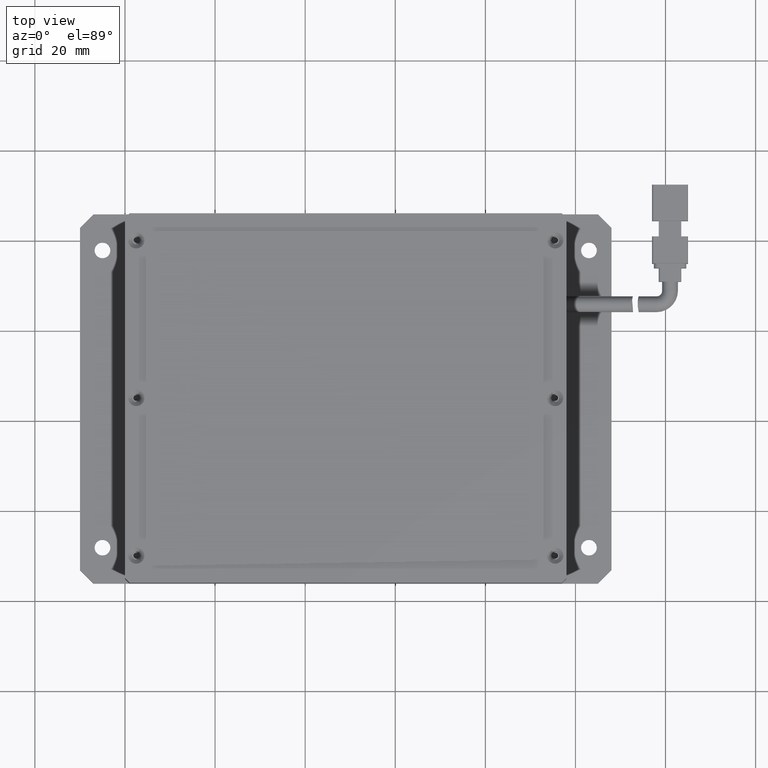
[diagram: clean part render]
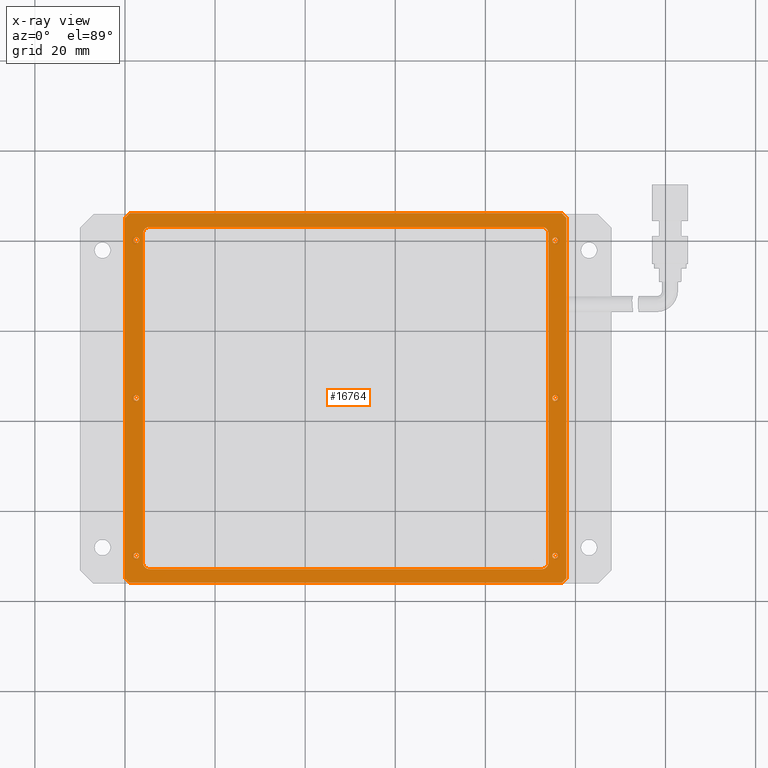
[diagram: x-ray — body ghosted, one internal face saturated and labeled with its STEP entity id]
A machine part, top view, then the same camera in x-ray: the body is ghosted and one INTERNAL B-rep face — a face not visible from any outside direction — is saturated and labeled: STEP entity #16764.
In plain terms, the highlighted planar face has unit normal (0, 0, -1).
Its self-contained STEP definition (entity closure, byte-faithful):
#27 = VECTOR ( 'NONE', #4914, 1000.000000000000000 ) ;
#37 = CARTESIAN_POINT ( 'NONE',  ( -39.99847269950363700, 42.85299732722415900, 10.99999999999551300 ) ) ;
#83 = CARTESIAN_POINT ( 'NONE',  ( 54.00152730049637700, -31.64700267277583400, 10.99999999999551300 ) ) ;
#187 = CARTESIAN_POINT ( 'NONE',  ( -39.99847269950363700, 45.85299732722416600, 10.99999999999551300 ) ) ;
#188 = CARTESIAN_POINT ( 'NONE',  ( 56.12652730049636300, 4.852997327224162700, 10.99999999999551300 ) ) ;
#214 = DIRECTION ( 'NONE',  ( -1.000000000000000000, 0.0000000000000000000, -0.0000000000000000000 ) ) ;
#395 = ORIENTED_EDGE ( 'NONE', *, *, #9872, .F. ) ;
#426 = EDGE_CURVE ( 'NONE', #3353, #3067, #11346, .T. ) ;
#461 = EDGE_CURVE ( 'NONE', #14214, #14255, #10644, .T. ) ;
#484 = FACE_OUTER_BOUND ( 'NONE', #14587, .T. ) ;
#625 = ORIENTED_EDGE ( 'NONE', *, *, #15202, .F. ) ;
#791 = CARTESIAN_POINT ( 'NONE',  ( -39.99847269950363700, 44.85299732722413800, 10.99999999999551300 ) ) ;
#1008 = VECTOR ( 'NONE', #3658, 1000.000000000000000 ) ;
#1085 = CARTESIAN_POINT ( 'NONE',  ( 54.87652730049636300, -30.14700267277584100, 10.99999999999551300 ) ) ;
#1119 = EDGE_CURVE ( 'NONE', #8654, #8422, #14014, .T. ) ;
#1139 = ORIENTED_EDGE ( 'NONE', *, *, #12066, .T. ) ;
#1216 = DIRECTION ( 'NONE',  ( 1.000000000000000000, 0.0000000000000000000, 0.0000000000000000000 ) ) ;
#1220 = CIRCLE ( 'NONE', #8804, 0.6250000000000005600 ) ;
#1291 = DIRECTION ( 'NONE',  ( 1.000000000000000000, 0.0000000000000000000, 0.0000000000000000000 ) ) ;
#1309 = CARTESIAN_POINT ( 'NONE',  ( 58.00152730049637000, -35.14700267277585500, 10.99999999999551300 ) ) ;
#1370 = AXIS2_PLACEMENT_3D ( 'NONE', #5085, #13944, #6326 ) ;
#1377 = CARTESIAN_POINT ( 'NONE',  ( 55.50152730049636300, 4.852997327224162700, 10.99999999999551300 ) ) ;
#1415 = CARTESIAN_POINT ( 'NONE',  ( 56.12652730049636300, -30.14700267277584100, 10.99999999999551300 ) ) ;
#1430 = DIRECTION ( 'NONE',  ( -0.0000000000000000000, -0.0000000000000000000, 1.000000000000000000 ) ) ;
#1436 = ORIENTED_EDGE ( 'NONE', *, *, #14103, .F. ) ;
#1450 = ORIENTED_EDGE ( 'NONE', *, *, #15275, .F. ) ;
#1540 = CARTESIAN_POINT ( 'NONE',  ( -38.99847269950364400, -36.14700267277584100, 10.99999999999551300 ) ) ;
#1561 = CARTESIAN_POINT ( 'NONE',  ( 55.50152730049636300, -30.14700267277584100, 10.99999999999551300 ) ) ;
#1659 = CIRCLE ( 'NONE', #3608, 1.500000000000001300 ) ;
#1758 = LINE ( 'NONE', #37, #4889 ) ;
#1893 = CARTESIAN_POINT ( 'NONE',  ( -39.99847269950363700, 45.85299732722416600, 10.99999999999551300 ) ) ;
#1915 = ORIENTED_EDGE ( 'NONE', *, *, #3147, .F. ) ;
#2191 = EDGE_LOOP ( 'NONE', ( #14137, #2971 ) ) ;
#2342 = ORIENTED_EDGE ( 'NONE', *, *, #1119, .F. ) ;
#2402 = CARTESIAN_POINT ( 'NONE',  ( -39.99847269950363700, 45.85299732722416600, 10.99999999999551300 ) ) ;
#2675 = CARTESIAN_POINT ( 'NONE',  ( -38.07905127682133200, 39.91058370809953000, 10.99999999999551300 ) ) ;
#2693 = AXIS2_PLACEMENT_3D ( 'NONE', #1377, #1430, #5235 ) ;
#2837 = DIRECTION ( 'NONE',  ( 0.0000000000000000000, 0.0000000000000000000, 1.000000000000000000 ) ) ;
#2920 = DIRECTION ( 'NONE',  ( 1.000000000000000000, 0.0000000000000000000, 0.0000000000000000000 ) ) ;
#2971 = ORIENTED_EDGE ( 'NONE', *, *, #461, .F. ) ;
#3067 = VERTEX_POINT ( 'NONE', #10291 ) ;
#3103 = CARTESIAN_POINT ( 'NONE',  ( 52.50152730049636300, 42.85299732722415900, 10.99999999999551300 ) ) ;
#3147 = EDGE_CURVE ( 'NONE', #15125, #15163, #16134, .T. ) ;
#3170 = CARTESIAN_POINT ( 'NONE',  ( 56.12652730049636300, 39.85299732722415900, 10.99999999999551300 ) ) ;
#3263 = DIRECTION ( 'NONE',  ( -1.000000000000000000, 0.0000000000000000000, -0.0000000000000000000 ) ) ;
#3280 = VERTEX_POINT ( 'NONE', #5790 ) ;
#3353 = VERTEX_POINT ( 'NONE', #5344 ) ;
#3361 = DIRECTION ( 'NONE',  ( -0.0000000000000000000, -0.0000000000000000000, 1.000000000000000000 ) ) ;
#3382 = AXIS2_PLACEMENT_3D ( 'NONE', #4067, #12962, #5357 ) ;
#3422 = ORIENTED_EDGE ( 'NONE', *, *, #11112, .T. ) ;
#3450 = ORIENTED_EDGE ( 'NONE', *, *, #8393, .F. ) ;
#3504 = AXIS2_PLACEMENT_3D ( 'NONE', #16662, #8971, #1216 ) ;
#3552 = CARTESIAN_POINT ( 'NONE',  ( -38.12347269950363700, -30.14700267277584100, 10.99999999999551300 ) ) ;
#3600 = VERTEX_POINT ( 'NONE', #83 ) ;
#3608 = AXIS2_PLACEMENT_3D ( 'NONE', #12992, #5385, #14270 ) ;
#3609 = ORIENTED_EDGE ( 'NONE', *, *, #9233, .F. ) ;
#3658 = DIRECTION ( 'NONE',  ( -0.0000000000000000000, -1.000000000000000000, -0.0000000000000000000 ) ) ;
#3684 = CARTESIAN_POINT ( 'NONE',  ( 58.00152730049637000, 45.85299732722416600, 10.99999999999551300 ) ) ;
#3770 = DIRECTION ( 'NONE',  ( 0.0000000000000000000, 1.000000000000000000, 0.0000000000000000000 ) ) ;
#4034 = ORIENTED_EDGE ( 'NONE', *, *, #16206, .T. ) ;
#4057 = FACE_BOUND ( 'NONE', #2191, .T. ) ;
#4067 = CARTESIAN_POINT ( 'NONE',  ( 55.50152730049636300, 4.852997327224162700, 10.99999999999551300 ) ) ;
#4117 = ORIENTED_EDGE ( 'NONE', *, *, #4491, .F. ) ;
#4122 = CIRCLE ( 'NONE', #7654, 1.500000000000001300 ) ;
#4243 = CIRCLE ( 'NONE', #11741, 0.6250000000000005600 ) ;
#4255 = CARTESIAN_POINT ( 'NONE',  ( -35.99847269950362300, 41.35299732722417300, 10.99999999999551300 ) ) ;
#4491 = EDGE_CURVE ( 'NONE', #5124, #3280, #1758, .T. ) ;
#4603 = VERTEX_POINT ( 'NONE', #13151 ) ;
#4702 = LINE ( 'NONE', #3684, #11441 ) ;
#4805 = CARTESIAN_POINT ( 'NONE',  ( -39.99847269950363700, -33.14700267277584800, 10.99999999999551300 ) ) ;
#4823 = CIRCLE ( 'NONE', #15064, 0.6250000000000005600 ) ;
#4889 = VECTOR ( 'NONE', #214, 1000.000000000000000 ) ;
#4914 = DIRECTION ( 'NONE',  ( 1.000000000000000000, -0.0000000000000000000, 0.0000000000000000000 ) ) ;
#4950 = VERTEX_POINT ( 'NONE', #7805 ) ;
#5085 = CARTESIAN_POINT ( 'NONE',  ( -37.49847269950363700, 4.852997327224162700, 10.99999999999551300 ) ) ;
#5122 = LINE ( 'NONE', #5813, #8076 ) ;
#5124 = VERTEX_POINT ( 'NONE', #3103 ) ;
#5177 = CARTESIAN_POINT ( 'NONE',  ( 58.00152730049638400, 44.85299732722409500, 10.99999999999551600 ) ) ;
#5235 = DIRECTION ( 'NONE',  ( 1.000000000000000000, 0.0000000000000000000, 0.0000000000000000000 ) ) ;
#5344 = CARTESIAN_POINT ( 'NONE',  ( -34.49847269950362300, -33.14700267277584800, 10.99999999999551300 ) ) ;
#5349 = CARTESIAN_POINT ( 'NONE',  ( -39.99847269950363700, -36.14700267277585500, 10.99999999999551300 ) ) ;
#5357 = DIRECTION ( 'NONE',  ( 1.000000000000000000, 0.0000000000000000000, 0.0000000000000000000 ) ) ;
#5385 = DIRECTION ( 'NONE',  ( 0.0000000000000000000, 0.0000000000000000000, 1.000000000000000000 ) ) ;
#5466 = CARTESIAN_POINT ( 'NONE',  ( -34.49847269950362300, -31.64700267277584800, 10.99999999999551300 ) ) ;
#5540 = DIRECTION ( 'NONE',  ( 0.0000000000000000000, 0.0000000000000000000, 1.000000000000000000 ) ) ;
#5543 = CARTESIAN_POINT ( 'NONE',  ( 57.00152730049632800, 45.85299732722416600, 10.99999999999551300 ) ) ;
#5575 = PLANE ( 'NONE',  #16573 ) ;
#5584 = VERTEX_POINT ( 'NONE', #4255 ) ;
#5790 = CARTESIAN_POINT ( 'NONE',  ( -34.49847269950362300, 42.85299732722417300, 10.99999999999551300 ) ) ;
#5813 = CARTESIAN_POINT ( 'NONE',  ( -38.99847269950365100, -36.14700267277584100, 10.99999999999551300 ) ) ;
#6003 = CARTESIAN_POINT ( 'NONE',  ( 57.00152730049635600, -36.14700267277584800, 10.99999999999551300 ) ) ;
#6182 = ORIENTED_EDGE ( 'NONE', *, *, #6705, .F. ) ;
#6194 = EDGE_CURVE ( 'NONE', #3280, #5584, #1659, .T. ) ;
#6211 = CARTESIAN_POINT ( 'NONE',  ( -36.87347269950363000, -30.14700267277584100, 10.99999999999551300 ) ) ;
#6313 = DIRECTION ( 'NONE',  ( -1.000000000000000000, 0.0000000000000000000, -0.0000000000000000000 ) ) ;
#6326 = DIRECTION ( 'NONE',  ( 1.000000000000000000, 0.0000000000000000000, 0.0000000000000000000 ) ) ;
#6340 = ORIENTED_EDGE ( 'NONE', *, *, #11872, .F. ) ;
#6349 = ORIENTED_EDGE ( 'NONE', *, *, #9693, .F. ) ;
#6444 = CIRCLE ( 'NONE', #8533, 0.6250000000000005600 ) ;
#6473 = CARTESIAN_POINT ( 'NONE',  ( -38.99847269950362300, 45.85299732722416600, 10.99999999999551300 ) ) ;
#6598 = DIRECTION ( 'NONE',  ( -0.0000000000000000000, -0.0000000000000000000, 1.000000000000000000 ) ) ;
#6620 = CARTESIAN_POINT ( 'NONE',  ( 54.87652730049636300, 39.85299732722415900, 10.99999999999551300 ) ) ;
#6705 = EDGE_CURVE ( 'NONE', #8258, #10075, #11762, .T. ) ;
#6745 = DIRECTION ( 'NONE',  ( 1.000000000000000000, 0.0000000000000000000, 0.0000000000000000000 ) ) ;
#6805 = VERTEX_POINT ( 'NONE', #13296 ) ;
#7051 = FACE_BOUND ( 'NONE', #13227, .T. ) ;
#7058 = VECTOR ( 'NONE', #10312, 1000.000000000000000 ) ;
#7197 = DIRECTION ( 'NONE',  ( -0.0000000000000000000, -0.0000000000000000000, 1.000000000000000000 ) ) ;
#7201 = ORIENTED_EDGE ( 'NONE', *, *, #7372, .F. ) ;
#7299 = ORIENTED_EDGE ( 'NONE', *, *, #14614, .F. ) ;
#7372 = EDGE_CURVE ( 'NONE', #15163, #15125, #4823, .T. ) ;
#7434 = FACE_BOUND ( 'NONE', #13299, .T. ) ;
#7488 = CIRCLE ( 'NONE', #8509, 1.500000000000001300 ) ;
#7574 = CARTESIAN_POINT ( 'NONE',  ( -37.49847269950363700, 4.852997327224162700, 10.99999999999551300 ) ) ;
#7603 = DIRECTION ( 'NONE',  ( -0.0000000000000000000, -0.0000000000000000000, 1.000000000000000000 ) ) ;
#7654 = AXIS2_PLACEMENT_3D ( 'NONE', #5466, #14367, #6745 ) ;
#7696 = VECTOR ( 'NONE', #3770, 1000.000000000000000 ) ;
#7769 = AXIS2_PLACEMENT_3D ( 'NONE', #15243, #7603, #16559 ) ;
#7805 = CARTESIAN_POINT ( 'NONE',  ( -35.99847269950362300, -31.64700267277584800, 10.99999999999551300 ) ) ;
#7919 = LINE ( 'NONE', #11272, #1008 ) ;
#7920 = CARTESIAN_POINT ( 'NONE',  ( -36.82905127682133200, 39.91058370809953000, 10.99999999999551300 ) ) ;
#7945 = ORIENTED_EDGE ( 'NONE', *, *, #13237, .F. ) ;
#7997 = AXIS2_PLACEMENT_3D ( 'NONE', #13137, #5540, #14449 ) ;
#8013 = CIRCLE ( 'NONE', #7997, 1.500000000000001300 ) ;
#8029 = DIRECTION ( 'NONE',  ( 1.000000000000000000, -0.0000000000000000000, 0.0000000000000000000 ) ) ;
#8076 = VECTOR ( 'NONE', #13425, 1000.000000000000000 ) ;
#8095 = LINE ( 'NONE', #10516, #11089 ) ;
#8258 = VERTEX_POINT ( 'NONE', #6473 ) ;
#8350 = EDGE_CURVE ( 'NONE', #14255, #14214, #9468, .T. ) ;
#8375 = EDGE_CURVE ( 'NONE', #3067, #3600, #7488, .T. ) ;
#8393 = EDGE_CURVE ( 'NONE', #4950, #3353, #4122, .T. ) ;
#8422 = VERTEX_POINT ( 'NONE', #1540 ) ;
#8496 = DIRECTION ( 'NONE',  ( 1.000000000000000000, 0.0000000000000000000, 0.0000000000000000000 ) ) ;
#8509 = AXIS2_PLACEMENT_3D ( 'NONE', #10484, #2837, #11791 ) ;
#8533 = AXIS2_PLACEMENT_3D ( 'NONE', #14842, #7197, #16138 ) ;
#8542 = VECTOR ( 'NONE', #11132, 1000.000000000000000 ) ;
#8550 = DIRECTION ( 'NONE',  ( -0.0000000000000000000, -0.0000000000000000000, 1.000000000000000000 ) ) ;
#8566 = CARTESIAN_POINT ( 'NONE',  ( -37.49847269950363700, -30.14700267277584100, 10.99999999999551300 ) ) ;
#8654 = VERTEX_POINT ( 'NONE', #6003 ) ;
#8688 = VERTEX_POINT ( 'NONE', #11404 ) ;
#8804 = AXIS2_PLACEMENT_3D ( 'NONE', #11000, #3361, #12288 ) ;
#8837 = DIRECTION ( 'NONE',  ( 1.000000000000000000, 0.0000000000000000000, 0.0000000000000000000 ) ) ;
#8863 = CIRCLE ( 'NONE', #15863, 0.6250000000000005600 ) ;
#8971 = DIRECTION ( 'NONE',  ( -0.0000000000000000000, -0.0000000000000000000, 1.000000000000000000 ) ) ;
#9039 = DIRECTION ( 'NONE',  ( -0.0000000000000000000, -0.0000000000000000000, 1.000000000000000000 ) ) ;
#9233 = EDGE_CURVE ( 'NONE', #14652, #14799, #10590, .T. ) ;
#9296 = VERTEX_POINT ( 'NONE', #5177 ) ;
#9376 = ORIENTED_EDGE ( 'NONE', *, *, #8375, .F. ) ;
#9468 = CIRCLE ( 'NONE', #3382, 0.6250000000000005600 ) ;
#9538 = VERTEX_POINT ( 'NONE', #10738 ) ;
#9693 = EDGE_CURVE ( 'NONE', #4603, #5124, #8013, .T. ) ;
#9872 = EDGE_CURVE ( 'NONE', #13809, #13722, #6444, .T. ) ;
#10002 = DIRECTION ( 'NONE',  ( -0.0000000000000000000, -1.000000000000000000, -0.0000000000000000000 ) ) ;
#10012 = EDGE_CURVE ( 'NONE', #15662, #15589, #13598, .T. ) ;
#10075 = VERTEX_POINT ( 'NONE', #14025 ) ;
#10095 = ORIENTED_EDGE ( 'NONE', *, *, #10012, .F. ) ;
#10291 = CARTESIAN_POINT ( 'NONE',  ( 52.50152730049636300, -33.14700267277584100, 10.99999999999551300 ) ) ;
#10312 = DIRECTION ( 'NONE',  ( 0.7071067811865524600, 0.7071067811865426900, -0.0000000000000000000 ) ) ;
#10397 = FACE_BOUND ( 'NONE', #13439, .T. ) ;
#10484 = CARTESIAN_POINT ( 'NONE',  ( 52.50152730049637700, -31.64700267277583400, 10.99999999999551300 ) ) ;
#10516 = CARTESIAN_POINT ( 'NONE',  ( 54.00152730049637700, 45.85299732722416600, 10.99999999999551300 ) ) ;
#10563 = DIRECTION ( 'NONE',  ( -0.0000000000000000000, -0.0000000000000000000, 1.000000000000000000 ) ) ;
#10589 = ORIENTED_EDGE ( 'NONE', *, *, #13624, .F. ) ;
#10590 = CIRCLE ( 'NONE', #7769, 0.6250000000000005600 ) ;
#10644 = CIRCLE ( 'NONE', #2693, 0.6250000000000005600 ) ;
#10738 = CARTESIAN_POINT ( 'NONE',  ( 58.00152730049637000, -35.14700267277585500, 10.99999999999551300 ) ) ;
#10807 = FACE_BOUND ( 'NONE', #14126, .T. ) ;
#10897 = DIRECTION ( 'NONE',  ( 0.0000000000000000000, 0.0000000000000000000, -1.000000000000000000 ) ) ;
#11000 = CARTESIAN_POINT ( 'NONE',  ( -37.45405127682133200, 39.91058370809953000, 10.99999999999551300 ) ) ;
#11089 = VECTOR ( 'NONE', #11827, 1000.000000000000000 ) ;
#11093 = LINE ( 'NONE', #2402, #7696 ) ;
#11112 = EDGE_CURVE ( 'NONE', #8258, #8688, #15748, .T. ) ;
#11132 = DIRECTION ( 'NONE',  ( -0.7071067811865426900, -0.7071067811865524600, -0.0000000000000000000 ) ) ;
#11272 = CARTESIAN_POINT ( 'NONE',  ( -35.99847269950362300, 45.85299732722416600, 10.99999999999551300 ) ) ;
#11346 = LINE ( 'NONE', #4805, #27 ) ;
#11404 = CARTESIAN_POINT ( 'NONE',  ( -39.99847269950364400, 44.85299732722412400, 10.99999999999551300 ) ) ;
#11441 = VECTOR ( 'NONE', #10002, 1000.000000000000000 ) ;
#11741 = AXIS2_PLACEMENT_3D ( 'NONE', #16736, #9039, #1291 ) ;
#11762 = LINE ( 'NONE', #187, #13562 ) ;
#11791 = DIRECTION ( 'NONE',  ( 1.000000000000000000, 0.0000000000000000000, 0.0000000000000000000 ) ) ;
#11827 = DIRECTION ( 'NONE',  ( 0.0000000000000000000, 1.000000000000000000, 0.0000000000000000000 ) ) ;
#11872 = EDGE_CURVE ( 'NONE', #3600, #4603, #8095, .T. ) ;
#12066 = EDGE_CURVE ( 'NONE', #6805, #8422, #5122, .T. ) ;
#12189 = ORIENTED_EDGE ( 'NONE', *, *, #6194, .F. ) ;
#12288 = DIRECTION ( 'NONE',  ( 1.000000000000000000, 0.0000000000000000000, 0.0000000000000000000 ) ) ;
#12762 = ORIENTED_EDGE ( 'NONE', *, *, #426, .F. ) ;
#12962 = DIRECTION ( 'NONE',  ( -0.0000000000000000000, -0.0000000000000000000, 1.000000000000000000 ) ) ;
#12992 = CARTESIAN_POINT ( 'NONE',  ( -34.49847269950362300, 41.35299732722417300, 10.99999999999551300 ) ) ;
#13032 = CARTESIAN_POINT ( 'NONE',  ( 54.87652730049636300, 4.852997327224162700, 10.99999999999551300 ) ) ;
#13117 = EDGE_CURVE ( 'NONE', #16108, #16142, #1220, .T. ) ;
#13137 = CARTESIAN_POINT ( 'NONE',  ( 52.50152730049636300, 41.35299732722415900, 10.99999999999551300 ) ) ;
#13145 = AXIS2_PLACEMENT_3D ( 'NONE', #8566, #8550, #8496 ) ;
#13151 = CARTESIAN_POINT ( 'NONE',  ( 54.00152730049636300, 41.35299732722415900, 10.99999999999551300 ) ) ;
#13227 = EDGE_LOOP ( 'NONE', ( #1450, #15029 ) ) ;
#13237 = EDGE_CURVE ( 'NONE', #5584, #4950, #7919, .T. ) ;
#13296 = CARTESIAN_POINT ( 'NONE',  ( -39.99847269950363700, -35.14700267277584100, 10.99999999999551300 ) ) ;
#13299 = EDGE_LOOP ( 'NONE', ( #15796, #3609 ) ) ;
#13382 = CIRCLE ( 'NONE', #1370, 0.6250000000000005600 ) ;
#13425 = DIRECTION ( 'NONE',  ( 0.7071067811865426900, -0.7071067811865524600, -0.0000000000000000000 ) ) ;
#13439 = EDGE_LOOP ( 'NONE', ( #10095, #625 ) ) ;
#13562 = VECTOR ( 'NONE', #8029, 1000.000000000000000 ) ;
#13598 = CIRCLE ( 'NONE', #16163, 0.6250000000000005600 ) ;
#13624 = EDGE_CURVE ( 'NONE', #6805, #8688, #11093, .T. ) ;
#13665 = EDGE_LOOP ( 'NONE', ( #12189, #4117, #6349, #6340, #9376, #12762, #3450, #7945 ) ) ;
#13722 = VERTEX_POINT ( 'NONE', #6620 ) ;
#13808 = FACE_BOUND ( 'NONE', #15098, .T. ) ;
#13809 = VERTEX_POINT ( 'NONE', #3170 ) ;
#13815 = LINE ( 'NONE', #1309, #7058 ) ;
#13869 = VECTOR ( 'NONE', #6313, 1000.000000000000000 ) ;
#13944 = DIRECTION ( 'NONE',  ( -0.0000000000000000000, -0.0000000000000000000, 1.000000000000000000 ) ) ;
#14014 = LINE ( 'NONE', #5349, #13869 ) ;
#14025 = CARTESIAN_POINT ( 'NONE',  ( 57.00152730049629900, 45.85299732722418000, 10.99999999999551300 ) ) ;
#14103 = EDGE_CURVE ( 'NONE', #13722, #13809, #15283, .T. ) ;
#14126 = EDGE_LOOP ( 'NONE', ( #395, #1436 ) ) ;
#14137 = ORIENTED_EDGE ( 'NONE', *, *, #8350, .F. ) ;
#14207 = CARTESIAN_POINT ( 'NONE',  ( -37.49847269950363700, -30.14700267277584100, 10.99999999999551300 ) ) ;
#14210 = FACE_BOUND ( 'NONE', #13665, .T. ) ;
#14214 = VERTEX_POINT ( 'NONE', #13032 ) ;
#14255 = VERTEX_POINT ( 'NONE', #188 ) ;
#14270 = DIRECTION ( 'NONE',  ( 1.000000000000000000, 0.0000000000000000000, 0.0000000000000000000 ) ) ;
#14367 = DIRECTION ( 'NONE',  ( 0.0000000000000000000, 0.0000000000000000000, 1.000000000000000000 ) ) ;
#14449 = DIRECTION ( 'NONE',  ( 1.000000000000000000, 0.0000000000000000000, 0.0000000000000000000 ) ) ;
#14587 = EDGE_LOOP ( 'NONE', ( #4034, #6182, #3422, #10589, #1139, #2342, #14593, #7299 ) ) ;
#14593 = ORIENTED_EDGE ( 'NONE', *, *, #14738, .T. ) ;
#14614 = EDGE_CURVE ( 'NONE', #9296, #9538, #4702, .T. ) ;
#14652 = VERTEX_POINT ( 'NONE', #1085 ) ;
#14738 = EDGE_CURVE ( 'NONE', #8654, #9538, #13815, .T. ) ;
#14799 = VERTEX_POINT ( 'NONE', #1415 ) ;
#14842 = CARTESIAN_POINT ( 'NONE',  ( 55.50152730049636300, 39.85299732722415900, 10.99999999999551300 ) ) ;
#14911 = CARTESIAN_POINT ( 'NONE',  ( -38.12347269950363700, 4.852997327224162700, 10.99999999999551300 ) ) ;
#15029 = ORIENTED_EDGE ( 'NONE', *, *, #13117, .F. ) ;
#15064 = AXIS2_PLACEMENT_3D ( 'NONE', #14207, #6598, #15513 ) ;
#15098 = EDGE_LOOP ( 'NONE', ( #7201, #1915 ) ) ;
#15125 = VERTEX_POINT ( 'NONE', #3552 ) ;
#15163 = VERTEX_POINT ( 'NONE', #6211 ) ;
#15202 = EDGE_CURVE ( 'NONE', #15589, #15662, #13382, .T. ) ;
#15243 = CARTESIAN_POINT ( 'NONE',  ( 55.50152730049636300, -30.14700267277584100, 10.99999999999551300 ) ) ;
#15274 = VECTOR ( 'NONE', #15749, 1000.000000000000100 ) ;
#15275 = EDGE_CURVE ( 'NONE', #16142, #16108, #4243, .T. ) ;
#15283 = CIRCLE ( 'NONE', #3504, 0.6250000000000005600 ) ;
#15513 = DIRECTION ( 'NONE',  ( 1.000000000000000000, 0.0000000000000000000, 0.0000000000000000000 ) ) ;
#15589 = VERTEX_POINT ( 'NONE', #14911 ) ;
#15662 = VERTEX_POINT ( 'NONE', #16375 ) ;
#15673 = LINE ( 'NONE', #5543, #15274 ) ;
#15748 = LINE ( 'NONE', #791, #8542 ) ;
#15749 = DIRECTION ( 'NONE',  ( -0.7071067811865474600, 0.7071067811865474600, -0.0000000000000000000 ) ) ;
#15796 = ORIENTED_EDGE ( 'NONE', *, *, #16177, .F. ) ;
#15863 = AXIS2_PLACEMENT_3D ( 'NONE', #1561, #10563, #2920 ) ;
#16108 = VERTEX_POINT ( 'NONE', #2675 ) ;
#16134 = CIRCLE ( 'NONE', #13145, 0.6250000000000005600 ) ;
#16138 = DIRECTION ( 'NONE',  ( 1.000000000000000000, 0.0000000000000000000, 0.0000000000000000000 ) ) ;
#16142 = VERTEX_POINT ( 'NONE', #7920 ) ;
#16163 = AXIS2_PLACEMENT_3D ( 'NONE', #7574, #16536, #8837 ) ;
#16177 = EDGE_CURVE ( 'NONE', #14799, #14652, #8863, .T. ) ;
#16206 = EDGE_CURVE ( 'NONE', #9296, #10075, #15673, .T. ) ;
#16375 = CARTESIAN_POINT ( 'NONE',  ( -36.87347269950363000, 4.852997327224162700, 10.99999999999551300 ) ) ;
#16536 = DIRECTION ( 'NONE',  ( -0.0000000000000000000, -0.0000000000000000000, 1.000000000000000000 ) ) ;
#16559 = DIRECTION ( 'NONE',  ( 1.000000000000000000, 0.0000000000000000000, 0.0000000000000000000 ) ) ;
#16573 = AXIS2_PLACEMENT_3D ( 'NONE', #1893, #10897, #3263 ) ;
#16662 = CARTESIAN_POINT ( 'NONE',  ( 55.50152730049636300, 39.85299732722415900, 10.99999999999551300 ) ) ;
#16736 = CARTESIAN_POINT ( 'NONE',  ( -37.45405127682133200, 39.91058370809953000, 10.99999999999551300 ) ) ;
#16764 = ADVANCED_FACE ( 'NONE', ( #14210, #484, #10807, #4057, #7434, #13808, #10397, #7051 ), #5575, .F. ) ;